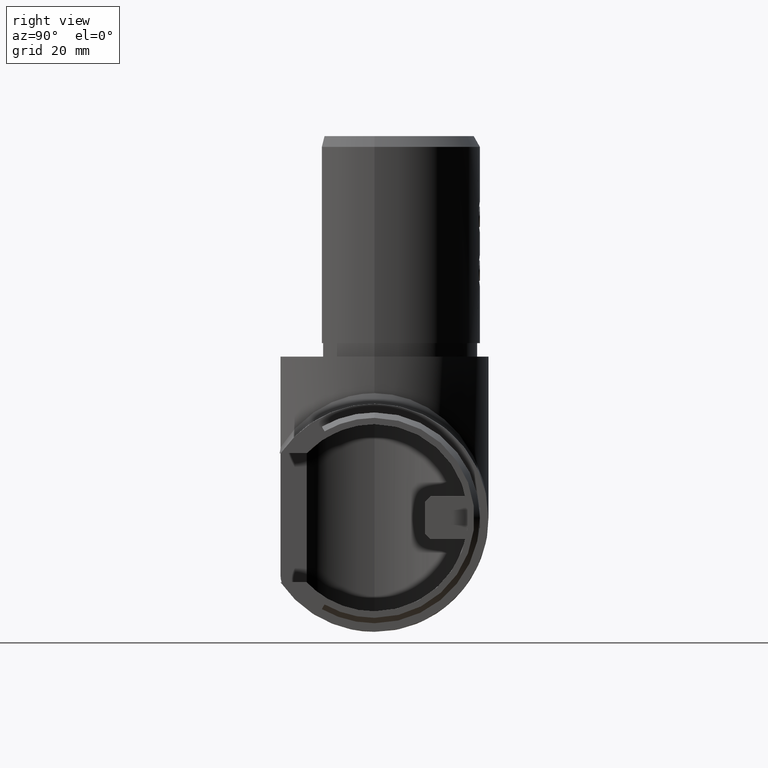
[diagram: clean part render]
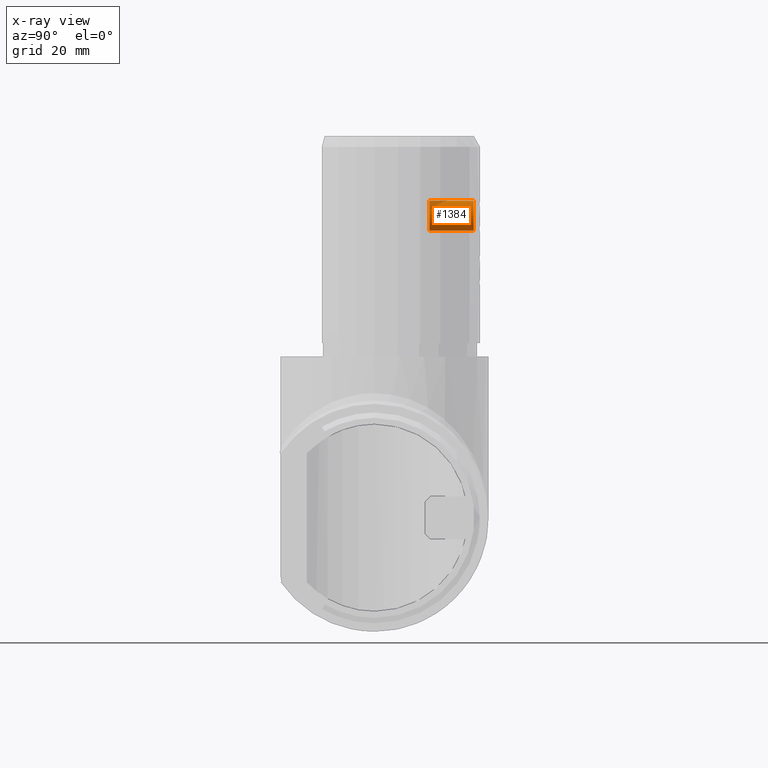
[diagram: x-ray — body ghosted, one internal face saturated and labeled with its STEP entity id]
A machine part, right view, then the same camera in x-ray: the body is ghosted and one INTERNAL B-rep face — a face not visible from any outside direction — is saturated and labeled: STEP entity #1384.
In plain terms, the highlighted cylindrical surface (edge-blend (fillet) strip) has radius 3 mm, axis along (0, 1, -0).
Its self-contained STEP definition (entity closure, byte-faithful):
#134 = ORIENTED_EDGE ( 'NONE', *, *, #16788, .T. ) ;
#575 = VERTEX_POINT ( 'NONE', #4689 ) ;
#1384 = ADVANCED_FACE ( 'NONE', ( #17722 ), #7462, .T. ) ;
#1629 = AXIS2_PLACEMENT_3D ( 'NONE', #5878, #5814, #16837 ) ;
#2442 = CARTESIAN_POINT ( 'NONE',  ( 1.149999999999987500, 0.0000000000000000000, 3.000000000000000000 ) ) ;
#2886 = CIRCLE ( 'NONE', #13500, 3.000000000000000000 ) ;
#3442 = CIRCLE ( 'NONE', #13352, 3.000000000000000000 ) ;
#3918 = CARTESIAN_POINT ( 'NONE',  ( 10.00000000000000000, 0.0000000000000000000, 3.000000000000000400 ) ) ;
#4566 = LINE ( 'NONE', #3918, #13894 ) ;
#4689 = CARTESIAN_POINT ( 'NONE',  ( 9.399999999999998600, 3.673940397442060400E-016, -3.000000000000000400 ) ) ;
#5175 = VERTEX_POINT ( 'NONE', #14866 ) ;
#5571 = CARTESIAN_POINT ( 'NONE',  ( 9.399999999999998600, 0.0000000000000000000, 3.000000000000000400 ) ) ;
#5814 = DIRECTION ( 'NONE',  ( -1.000000000000000000, -0.0000000000000000000, -0.0000000000000000000 ) ) ;
#5878 = CARTESIAN_POINT ( 'NONE',  ( 10.00000000000000000, 0.0000000000000000000, 0.0000000000000000000 ) ) ;
#6483 = EDGE_LOOP ( 'NONE', ( #8159, #134, #13110, #11843, #10816 ) ) ;
#6696 = DIRECTION ( 'NONE',  ( -1.000000000000000000, -0.0000000000000000000, -0.0000000000000000000 ) ) ;
#7462 = CYLINDRICAL_SURFACE ( 'NONE', #1629, 3.000000000000000400 ) ;
#7541 = DIRECTION ( 'NONE',  ( -7.228014483236695800E-017, -1.000000000000000000, 0.0000000000000000000 ) ) ;
#7687 = EDGE_CURVE ( 'NONE', #12861, #5175, #2886, .T. ) ;
#8159 = ORIENTED_EDGE ( 'NONE', *, *, #13120, .T. ) ;
#8211 = DIRECTION ( 'NONE',  ( 0.0000000000000000000, 0.0000000000000000000, -1.000000000000000000 ) ) ;
#8916 = EDGE_CURVE ( 'NONE', #12169, #12861, #4566, .T. ) ;
#9053 = CARTESIAN_POINT ( 'NONE',  ( 1.149999999999987500, -4.538988261647289600E-017, 0.0000000000000000000 ) ) ;
#9941 = DIRECTION ( 'NONE',  ( -1.000000000000000000, 0.0000000000000000000, 0.0000000000000000000 ) ) ;
#10816 = ORIENTED_EDGE ( 'NONE', *, *, #8916, .F. ) ;
#11843 = ORIENTED_EDGE ( 'NONE', *, *, #7687, .F. ) ;
#12169 = VERTEX_POINT ( 'NONE', #5571 ) ;
#12226 = AXIS2_PLACEMENT_3D ( 'NONE', #17675, #9941, #8211 ) ;
#12861 = VERTEX_POINT ( 'NONE', #2442 ) ;
#13110 = ORIENTED_EDGE ( 'NONE', *, *, #19845, .F. ) ;
#13120 = EDGE_CURVE ( 'NONE', #12169, #575, #13300, .T. ) ;
#13300 = CIRCLE ( 'NONE', #12226, 3.000000000000000400 ) ;
#13352 = AXIS2_PLACEMENT_3D ( 'NONE', #13962, #17166, #17298 ) ;
#13500 = AXIS2_PLACEMENT_3D ( 'NONE', #9053, #20041, #7541 ) ;
#13894 = VECTOR ( 'NONE', #16437, 1000.000000000000000 ) ;
#13962 = CARTESIAN_POINT ( 'NONE',  ( 1.149999999999987500, -4.538988261647289600E-017, 0.0000000000000000000 ) ) ;
#14866 = CARTESIAN_POINT ( 'NONE',  ( 1.149999999999987500, 3.000000000000000000, 0.0000000000000000000 ) ) ;
#15542 = LINE ( 'NONE', #19166, #20001 ) ;
#16437 = DIRECTION ( 'NONE',  ( -1.000000000000000000, -0.0000000000000000000, -0.0000000000000000000 ) ) ;
#16788 = EDGE_CURVE ( 'NONE', #575, #18980, #15542, .T. ) ;
#16837 = DIRECTION ( 'NONE',  ( 0.0000000000000000000, 0.0000000000000000000, 1.000000000000000000 ) ) ;
#17166 = DIRECTION ( 'NONE',  ( -1.000000000000000000, 3.946946314475947600E-017, -0.0000000000000000000 ) ) ;
#17298 = DIRECTION ( 'NONE',  ( -7.228014483236695800E-017, -1.000000000000000000, 0.0000000000000000000 ) ) ;
#17675 = CARTESIAN_POINT ( 'NONE',  ( 9.399999999999998600, 0.0000000000000000000, 0.0000000000000000000 ) ) ;
#17722 = FACE_OUTER_BOUND ( 'NONE', #6483, .T. ) ;
#18691 = CARTESIAN_POINT ( 'NONE',  ( 1.149999999999987500, 3.673940397442060400E-016, -3.000000000000000000 ) ) ;
#18980 = VERTEX_POINT ( 'NONE', #18691 ) ;
#19166 = CARTESIAN_POINT ( 'NONE',  ( 10.00000000000000000, 3.673940397442060400E-016, -3.000000000000000400 ) ) ;
#19845 = EDGE_CURVE ( 'NONE', #5175, #18980, #3442, .T. ) ;
#20001 = VECTOR ( 'NONE', #6696, 1000.000000000000000 ) ;
#20041 = DIRECTION ( 'NONE',  ( -1.000000000000000000, 3.946946314475947600E-017, -0.0000000000000000000 ) ) ;